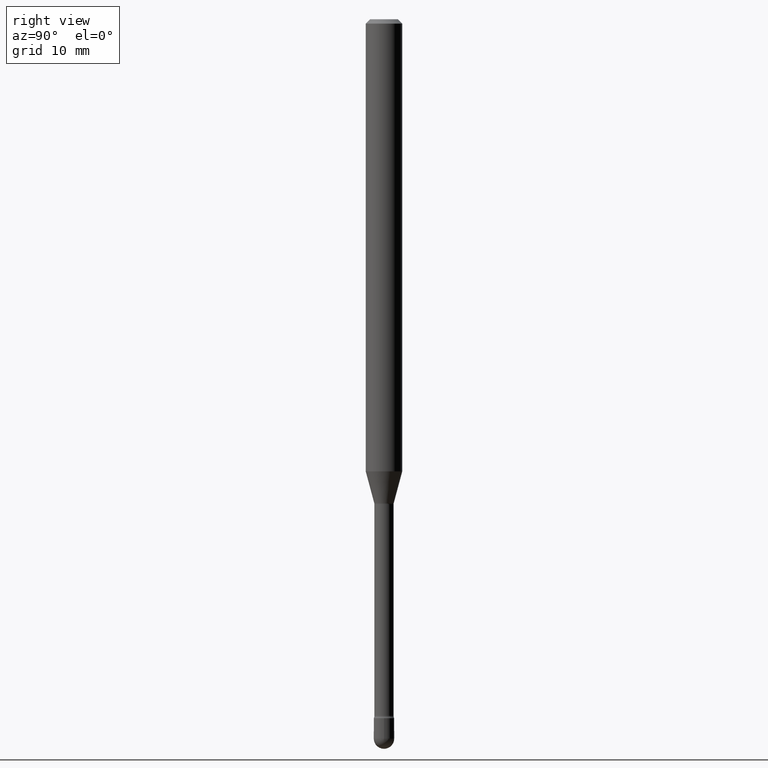
[diagram: clean part render]
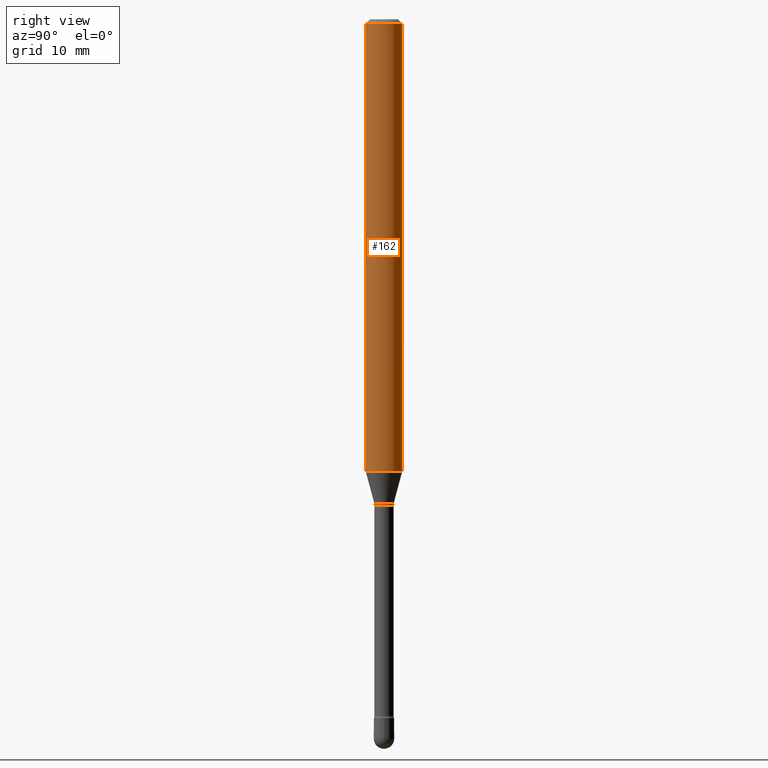
[diagram: same view with one face highlighted and labeled with its STEP entity id]
A machine part, right view. The second image highlights one B-rep face of the part: STEP entity #162.
In plain terms, the highlighted cylindrical surface (edge-blend (fillet) strip) has radius 1.5875 mm, axis along (-0, 0, 1).
Its self-contained STEP definition (entity closure, byte-faithful):
#12 = AXIS2_PLACEMENT_3D ( 'NONE', #213, #299, #253 ) ;
#25 = CARTESIAN_POINT ( 'NONE',  ( 4.440892098501006787E-16, 0.06249999999999995143, -0.01500000000000030129 ) ) ;
#30 = CARTESIAN_POINT ( 'NONE',  ( -4.364351673553912750E-16, -0.06250000000000005551, -0.01499999999999986587 ) ) ;
#38 = VECTOR ( 'NONE', #182, 39.37007874015748143 ) ;
#113 = FACE_OUTER_BOUND ( 'NONE', #518, .T. ) ;
#142 = VERTEX_POINT ( 'NONE', #30 ) ;
#153 = CARTESIAN_POINT ( 'NONE',  ( -1.169113584055446105E-44, 1.669184350826100908E-30, 4.780733988912460139E-16 ) ) ;
#154 = CIRCLE ( 'NONE', #12, 0.06250000000000000000 ) ;
#162 = ADVANCED_FACE ( 'NONE', ( #113 ), #501, .T. ) ;
#164 = VECTOR ( 'NONE', #446, 39.37007874015748143 ) ;
#178 = EDGE_CURVE ( 'NONE', #554, #523, #154, .T. ) ;
#182 = DIRECTION ( 'NONE',  ( -2.445517311797238688E-29, 3.491411876045848246E-15, 1.000000000000000000 ) ) ;
#188 = ORIENTED_EDGE ( 'NONE', *, *, #557, .T. ) ;
#191 = CARTESIAN_POINT ( 'NONE',  ( -4.364351673553540013E-16, -0.06250000000000544009, -1.549531296095961297 ) ) ;
#213 = CARTESIAN_POINT ( 'NONE',  ( 3.789405609774286933E-29, -5.410051969494155627E-15, -1.549531296095961519 ) ) ;
#229 = VERTEX_POINT ( 'NONE', #25 ) ;
#230 = ORIENTED_EDGE ( 'NONE', *, *, #495, .F. ) ;
#237 = ORIENTED_EDGE ( 'NONE', *, *, #363, .F. ) ;
#253 = DIRECTION ( 'NONE',  ( -6.982962677686265922E-15, -1.000000000000000000, 4.370956789862821150E-15 ) ) ;
#299 = DIRECTION ( 'NONE',  ( -2.445517311797238408E-29, 3.491411876045847852E-15, 1.000000000000000000 ) ) ;
#321 = AXIS2_PLACEMENT_3D ( 'NONE', #466, #561, #469 ) ;
#326 = CARTESIAN_POINT ( 'NONE',  ( -4.364351673553916201E-16, -0.06250000000000000000, 6.962866411441115293E-16 ) ) ;
#363 = EDGE_CURVE ( 'NONE', #142, #229, #560, .T. ) ;
#446 = DIRECTION ( 'NONE',  ( -2.445517311797238688E-29, 3.491411876045848246E-15, 1.000000000000000000 ) ) ;
#458 = DIRECTION ( 'NONE',  ( -2.445517311797238408E-29, 3.491411876045847852E-15, 1.000000000000000000 ) ) ;
#462 = DIRECTION ( 'NONE',  ( -6.982962677686265922E-15, -1.000000000000000000, 3.491411876045847458E-15 ) ) ;
#466 = CARTESIAN_POINT ( 'NONE',  ( 3.668275967695877755E-31, -5.237117814068800744E-17, -0.01500000000000008271 ) ) ;
#469 = DIRECTION ( 'NONE',  ( -6.982962677686265922E-15, -1.000000000000000000, 3.483106191921935554E-15 ) ) ;
#487 = CARTESIAN_POINT ( 'NONE',  ( 4.440892098500625669E-16, 0.06250000000000000000, 2.598601566383805971E-16 ) ) ;
#492 = CARTESIAN_POINT ( 'NONE',  ( 4.440892098501002843E-16, 0.06249999999999455991, -1.549531296095961963 ) ) ;
#495 = EDGE_CURVE ( 'NONE', #554, #142, #558, .T. ) ;
#501 = CYLINDRICAL_SURFACE ( 'NONE', #553, 0.06250000000000000000 ) ;
#516 = ORIENTED_EDGE ( 'NONE', *, *, #178, .T. ) ;
#518 = EDGE_LOOP ( 'NONE', ( #516, #188, #237, #230 ) ) ;
#523 = VERTEX_POINT ( 'NONE', #492 ) ;
#538 = LINE ( 'NONE', #487, #164 ) ;
#553 = AXIS2_PLACEMENT_3D ( 'NONE', #153, #458, #462 ) ;
#554 = VERTEX_POINT ( 'NONE', #191 ) ;
#557 = EDGE_CURVE ( 'NONE', #523, #229, #538, .T. ) ;
#558 = LINE ( 'NONE', #326, #38 ) ;
#560 = CIRCLE ( 'NONE', #321, 0.06250000000000000000 ) ;
#561 = DIRECTION ( 'NONE',  ( -2.445517311797238408E-29, 3.491411876045847852E-15, 1.000000000000000000 ) ) ;